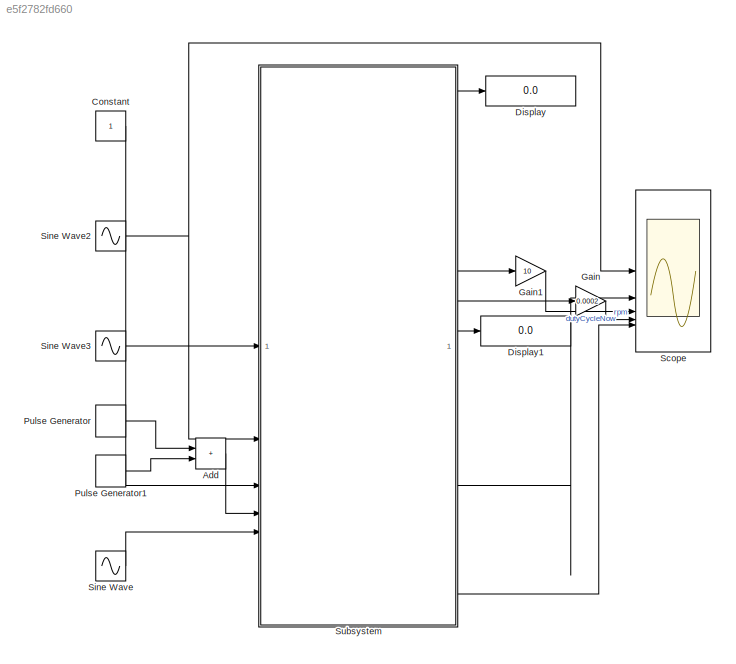
MODEL slx_e5f2782fd660
KIND model
CONFIG AbsTol = auto
CONFIG EnableMultiTasking = off
CONFIG FixedStep = 0.01
CONFIG MaxStep = auto
CONFIG MinStep = auto
CONFIG RelTol = 1e-3
CONFIG SampleTimeConstraint = Unconstrained
CONFIG SolverName = FixedStepAuto
CONFIG StartTime = 0.0
CONFIG StopTime = inf
WORKSPACE source: mxarray member
WORKSPACE vesc_device: internal.Serialport (value not decoded)
BLOCK [Sum] Add
  IconShape = rectangular
BLOCK [Constant] Constant
BLOCK [Display] Display
  Decimation = 1
BLOCK [Display] Display1
  Decimation = 1
BLOCK [Gain] Gain
  Gain = 0.0002
BLOCK [Gain] Gain1
  Gain = 10
BLOCK [DiscretePulseGenerator] Pulse Generator
  Amplitude = -.25
  PhaseDelay = 1
  PulseType = Time based
  PulseWidth = 50
BLOCK [DiscretePulseGenerator] Pulse Generator1
  Amplitude = .25
  PulseType = Time based
  PulseWidth = 50
BLOCK [Scope] Scope
  Floating = off
  NumInputPorts = 5
  ScopeSpecificationString = Simulink.scopes.TimeScopeBlockCfg('CurrentConfiguration', extmgr.ConfigurationSet(extmgr.Configuration('Core','General UI',true),extmgr.Configuration('Core','Source UI',true),extmgr.Configuration('Sources','WiredSimulink',true),extmgr.Configuration('Visuals','Time Domain',true,'SerializedDisplays',{struct('MinYLimReal','-13.54588','MaxYLimReal','13.91164','YLabelReal','','MinYLimMag','0.00000','Ma...<+1399ch>
BLOCK [Sin] Sine Wave
  Amplitude = 180
  Bias = 180
  SampleTime = 0
BLOCK [Sin] Sine Wave2
  Amplitude = 3
  Frequency = 8
  SampleTime = 0
BLOCK [Sin] Sine Wave3
  Amplitude = 2500
  Frequency = 3
  SampleTime = 0
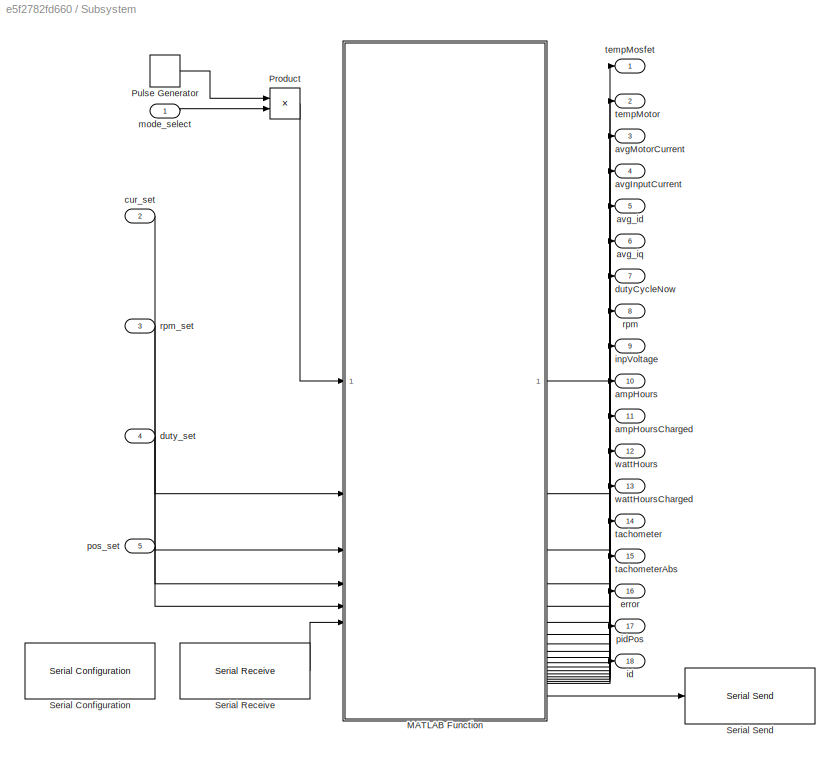
BLOCK [SubSystem] Subsystem
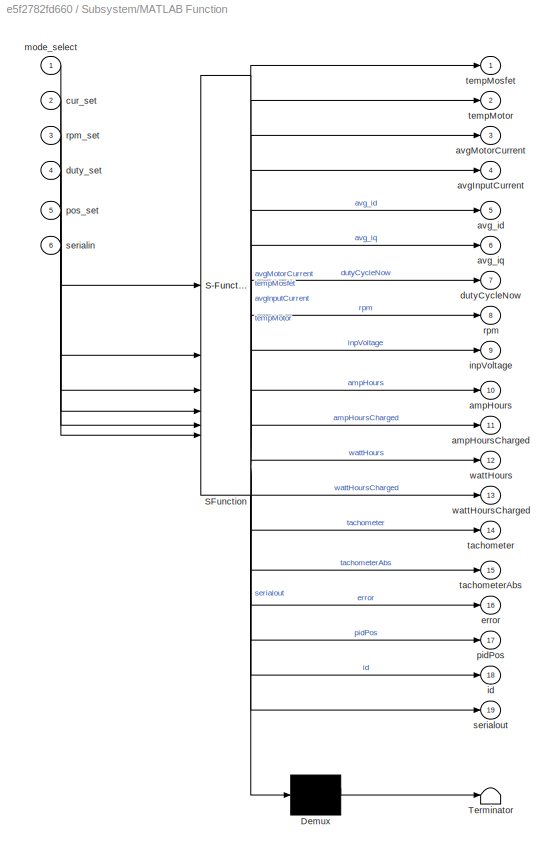
BLOCK [SubSystem] Subsystem/MATLAB Function
  ErrorFcn = Stateflow.Translate.translate
  LibrarySourceBlock = simulink/User-Defined\nFunctions/MATLAB Function
  LoadFcn = simulink_get_rt_data.m;\nsimulink_req_rt_data.m;\nsimulink_keep_alive.m;\nsimulink_set_current.m;\nsimulink_set_duty.m;\nsimulink_set_pos.m;\nsimulink_set_rpm.m;
  PermitHierarchicalResolution = ExplicitOnly
  SFBlockType = MATLAB Function
  TreatAsAtomicUnit = on
BLOCK [Demux] Subsystem/MATLAB Function/ Demux 
  Outputs = 1
BLOCK [S-Function] Subsystem/MATLAB Function/ SFunction 
  EnableBusSupport = on
  FunctionName = sf_sfun
  PortCounts = [6 20]
  SFcnIsStateOwnerBlock = off
  SFunctionDeploymentMode = off
  Tag = Stateflow S-Function 2
BLOCK [Terminator] Subsystem/MATLAB Function/ Terminator 
BLOCK [Outport] Subsystem/MATLAB Function/ampHours
  Port = 10
BLOCK [Outport] Subsystem/MATLAB Function/ampHoursCharged
  Port = 11
BLOCK [Outport] Subsystem/MATLAB Function/avgInputCurrent
  Port = 4
BLOCK [Outport] Subsystem/MATLAB Function/avgMotorCurrent
  Port = 3
BLOCK [Outport] Subsystem/MATLAB Function/avg_id
  Port = 5
BLOCK [Outport] Subsystem/MATLAB Function/avg_iq
  Port = 6
BLOCK [Inport] Subsystem/MATLAB Function/cur_set
  Port = 2
BLOCK [Outport] Subsystem/MATLAB Function/dutyCycleNow
  Port = 7
BLOCK [Inport] Subsystem/MATLAB Function/duty_set
  Port = 4
BLOCK [Outport] Subsystem/MATLAB Function/error
  Port = 16
BLOCK [Outport] Subsystem/MATLAB Function/id
  Port = 18
BLOCK [Outport] Subsystem/MATLAB Function/inpVoltage
  Port = 9
BLOCK [Inport] Subsystem/MATLAB Function/mode_select
BLOCK [Outport] Subsystem/MATLAB Function/pidPos
  Port = 17
BLOCK [Inport] Subsystem/MATLAB Function/pos_set
  Port = 5
BLOCK [Outport] Subsystem/MATLAB Function/rpm
  Port = 8
BLOCK [Inport] Subsystem/MATLAB Function/rpm_set
  Port = 3
BLOCK [Inport] Subsystem/MATLAB Function/serialin
  Port = 6
BLOCK [Outport] Subsystem/MATLAB Function/serialout
  Port = 19
BLOCK [Outport] Subsystem/MATLAB Function/tachometer
  Port = 14
BLOCK [Outport] Subsystem/MATLAB Function/tachometerAbs
  Port = 15
BLOCK [Outport] Subsystem/MATLAB Function/tempMosfet
BLOCK [Outport] Subsystem/MATLAB Function/tempMotor
  Port = 2
BLOCK [Outport] Subsystem/MATLAB Function/wattHours
  Port = 12
BLOCK [Outport] Subsystem/MATLAB Function/wattHoursCharged
  Port = 13
BLOCK [Product] Subsystem/Product
BLOCK [DiscretePulseGenerator] Subsystem/Pulse Generator
  Period = 0.02
  PulseType = Time based
  PulseWidth = 50
BLOCK [Reference] Subsystem/Serial Configuration  REF=instrumentseriallib/Serial Configuration
  LibrarySourceBlock = instrumentlib/Serial Configuration
  Priority = -200000
  SourceBlock = instrumentseriallib/Serial Configuration
  SourceType = system.SerialConfiguration
BLOCK [Reference] Subsystem/Serial Receive  REF=instrumentseriallib/Serial Receive
  LibrarySourceBlock = instrumentlib/Serial Receive
  Priority = 1
  SourceBlock = instrumentseriallib/Serial Receive
  SourceType = system.SerialReceive
BLOCK [Reference] Subsystem/Serial Send  REF=instrumentseriallib/Serial Send
  LibrarySourceBlock = instrumentlib/Serial Send
  Priority = 1
  SourceBlock = instrumentseriallib/Serial Send
  SourceType = system.SerialSend
BLOCK [Outport] Subsystem/ampHours
  Port = 10
BLOCK [Outport] Subsystem/ampHoursCharged
  Port = 11
BLOCK [Outport] Subsystem/avgInputCurrent
  Port = 4
BLOCK [Outport] Subsystem/avgMotorCurrent
  Port = 3
BLOCK [Outport] Subsystem/avg_id
  Port = 5
BLOCK [Outport] Subsystem/avg_iq
  Port = 6
BLOCK [Inport] Subsystem/cur_set
  Port = 2
BLOCK [Outport] Subsystem/dutyCycleNow
  Port = 7
BLOCK [Inport] Subsystem/duty_set
  Port = 4
BLOCK [Outport] Subsystem/error
  Port = 16
BLOCK [Outport] Subsystem/id
  Port = 18
BLOCK [Outport] Subsystem/inpVoltage
  Port = 9
BLOCK [Inport] Subsystem/mode_select
BLOCK [Outport] Subsystem/pidPos
  Port = 17
BLOCK [Inport] Subsystem/pos_set
  Port = 5
BLOCK [Outport] Subsystem/rpm
  Port = 8
BLOCK [Inport] Subsystem/rpm_set
  Port = 3
BLOCK [Outport] Subsystem/tachometer
  Port = 14
BLOCK [Outport] Subsystem/tachometerAbs
  Port = 15
BLOCK [Outport] Subsystem/tempMosfet
BLOCK [Outport] Subsystem/tempMotor
  Port = 2
BLOCK [Outport] Subsystem/wattHours
  Port = 12
BLOCK [Outport] Subsystem/wattHoursCharged
  Port = 13
LINE Add:1 -> Subsystem:4
LINE Constant:1 -> Subsystem:1
LINE Gain1:1 -> Scope:3
LINE Gain:1 -> Scope:4
LINE Pulse Generator1:1 -> Add:2
LINE Pulse Generator:1 -> Add:1
NET Sine Wave2:1 -> Scope:1, Subsystem:2
LINE Sine Wave3:1 -> Subsystem:3
LINE Sine Wave:1 -> Subsystem:5
LINE Subsystem/MATLAB Function:1 -> Subsystem/tempMosfet:1
LINE Subsystem/MATLAB Function:10 -> Subsystem/ampHours:1
LINE Subsystem/MATLAB Function:11 -> Subsystem/ampHoursCharged:1
LINE Subsystem/MATLAB Function:12 -> Subsystem/wattHours:1
LINE Subsystem/MATLAB Function:13 -> Subsystem/wattHoursCharged:1
LINE Subsystem/MATLAB Function:14 -> Subsystem/tachometer:1
LINE Subsystem/MATLAB Function:15 -> Subsystem/tachometerAbs:1
LINE Subsystem/MATLAB Function:16 -> Subsystem/error:1
LINE Subsystem/MATLAB Function:17 -> Subsystem/pidPos:1
LINE Subsystem/MATLAB Function:18 -> Subsystem/id:1
LINE Subsystem/MATLAB Function:19 -> Subsystem/Serial Send:1
LINE Subsystem/MATLAB Function:2 -> Subsystem/tempMotor:1
LINE Subsystem/MATLAB Function:3 -> Subsystem/avgMotorCurrent:1
LINE Subsystem/MATLAB Function:4 -> Subsystem/avgInputCurrent:1
LINE Subsystem/MATLAB Function:5 -> Subsystem/avg_id:1
LINE Subsystem/MATLAB Function:6 -> Subsystem/avg_iq:1
LINE Subsystem/MATLAB Function:7 -> Subsystem/dutyCycleNow:1
LINE Subsystem/MATLAB Function:8 -> Subsystem/rpm:1
LINE Subsystem/MATLAB Function:9 -> Subsystem/inpVoltage:1
LINE Subsystem/Product:1 -> Subsystem/MATLAB Function:1
LINE Subsystem/Pulse Generator:1 -> Subsystem/Product:1
LINE Subsystem/Serial Receive:1 -> Subsystem/MATLAB Function:6
LINE Subsystem/cur_set:1 -> Subsystem/MATLAB Function:2
LINE Subsystem/duty_set:1 -> Subsystem/MATLAB Function:4
LINE Subsystem/mode_select:1 -> Subsystem/Product:2
LINE Subsystem/pos_set:1 -> Subsystem/MATLAB Function:5
LINE Subsystem/rpm_set:1 -> Subsystem/MATLAB Function:3
LINE Subsystem:1 -> Display:1
LINE Subsystem:17 -> Scope:5
LINE Subsystem:3 -> Scope:2
LINE Subsystem:7 -> Gain1:1
LINE Subsystem:8 -> Gain:1
LINE Subsystem:9 -> Display1:1
note: NET lines group one-source signal fan-out (src -> all destinations, sorted); 1:1 wires keep LINE
CHART Subsystem/MATLAB Function states=1 transitions=1
  STATE_LABEL 'eML_blk_kernel()'
  STATE_LABEL 'SCRIPT:\nfunction [tempMosfet,tempMotor,avgMotorCurrent,avgInputCurrent,avg_id,avg_iq,dutyCycleNow,rpm,inpVoltage,ampHours,ampHoursCharged,wattHours,wattHoursCharged,tachometer,tachometerAbs,error,pidPos,id,serialout] = VESC(mode_select, cur_set, rpm_set, duty_set, pos_set, serialin)\n\n[tempMosfet,tempMotor,avgMotorCurrent,avgInputCurrent,avg_id,avg_iq,dutyCycleNow,rpm,inpVoltage,ampHours,ampHoursCh...<+526ch>'
CHART  states=0 transitions=0
